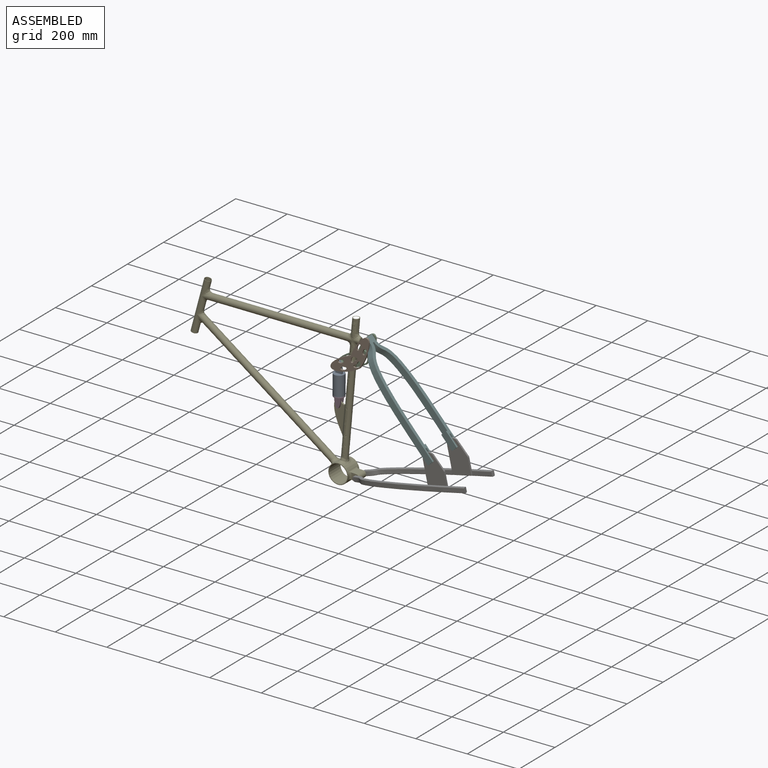
[diagram: assembled view]
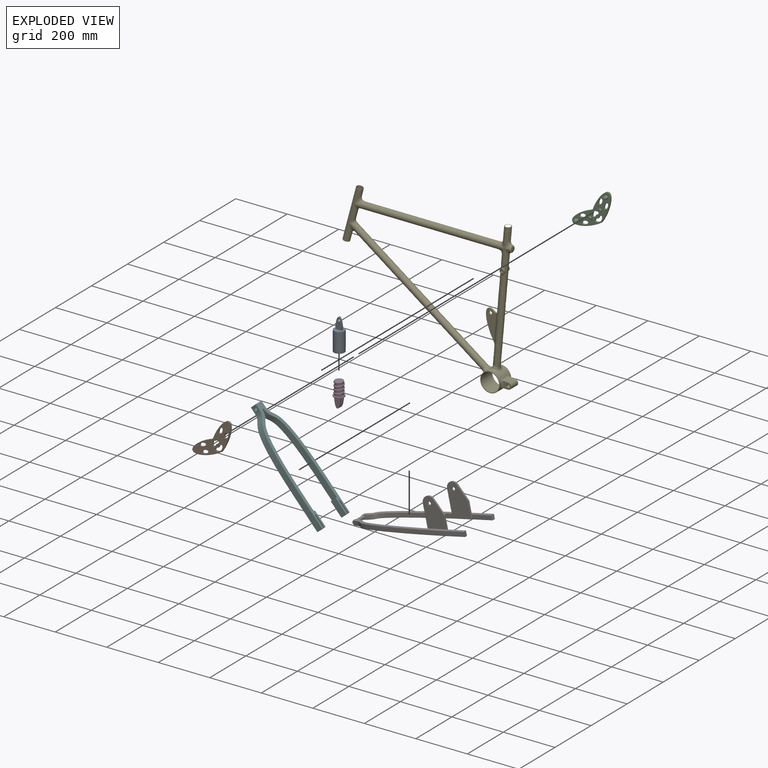
[diagram: exploded view]
GUIDED TOUR — MATED ASSEMBLY (Onshape document c7e5b628f52d0d9c007ad06b, AutoMate assembly c7e5b628f52d0d9c007ad06b_689811bf1573a9c6b45825ce_da18a4ce40c06c7fbb9daafa_default)

This assembly has 7 components, labeled P0..P6 below (a component is one placed occurrence of a part; the same part can appear more than once), held together by 9 mates. A mate is a constraint between two components; its type names the relative motion it leaves free:
  CYLINDRICAL — leaves both rotation about and translation along the listed axis free,
  PLANAR — leaves sliding in the plane through the listed point (normal = the listed direction) and rotation about that normal free,
  REVOLUTE — leaves rotation about the listed axis free (a hinge),
  SLIDER — leaves translation along the listed axis free.
Axis/direction vectors are unit vectors and 'through' points are millimeter coordinates, both in the assembly's world frame.

MATES
  1. PLANAR "Planar 1": P5 <-> P1, direction (0.000, 1.000, 0.000) through (377.31, 0.00, 23.34) mm
  2. SLIDER "Slider 1": P0 <-> P3, axis (-0.004, 0.000, -1.000) through (261.65, 0.00, -196.88) mm
  3. REVOLUTE "Revolute 1": P2 <-> P1, axis (0.000, -1.000, 0.000) through (377.31, 0.00, 23.34) mm
  4. CYLINDRICAL "Cylindrical 1": P0 <-> P2, axis (0.000, -1.000, 0.000) through (262.08, -0.38, -88.15) mm
  5. REVOLUTE "Revolute 5": P6 <-> P4, axis (0.000, 1.000, 0.000) through (341.32, 0.00, -460.16) mm
  6. REVOLUTE "Revolute 3": P2 <-> P4, axis (0.000, -1.000, 0.000) through (314.65, 9.53, -65.71) mm
  7. REVOLUTE "Revolute 4": P3 <-> P4, axis (0.000, -1.000, 0.000) through (261.52, 0.00, -230.20) mm
  8. CYLINDRICAL "Cylindrical 2": P5 <-> P6, axis (0.000, 1.000, 0.000) through (660.91, 66.67, -292.09) mm
  9. REVOLUTE "Revolute 2": P1 <-> P4, axis (0.000, 1.000, 0.000) through (314.65, -9.52, -65.71) mm

ASSEMBLY ORDER
  1. P3 — the base component [order heuristic]
  2. P0 — core [order heuristic]
  3. P5 [order verified]
  4. P6 [order verified]
  5. P4 [order verified]
  6. P2 [order verified]
  7. P1 [order verified]
(P1, P2, P4 verified with a relaxed clearance tolerance: the source model stores slight part interference there.)
Order-tag legend:
  [order verified] — this step's position reverses a verified removal order: the component was checked to insert without passing through the ones already placed.
  [order heuristic] — the first 2 components form the assembly's core: parts whose collision-free extraction could not be verified, listed in mate-graph order.

Of the 7 components, 1 carries the full construction recipe — the FeatureScript program that regenerates the part's solid from scratch; the rest are supplied as boundary geometry only.
Each toured component is shown spotlighted twice — in the assembled view, then in the exploded view, where a leader line traces a displaced component back to its assembled socket (saturated green if recipe-attached, orange if geometry-only; every other component desaturated gray) — followed by its recipe or geometry summary and the mates that hold it.
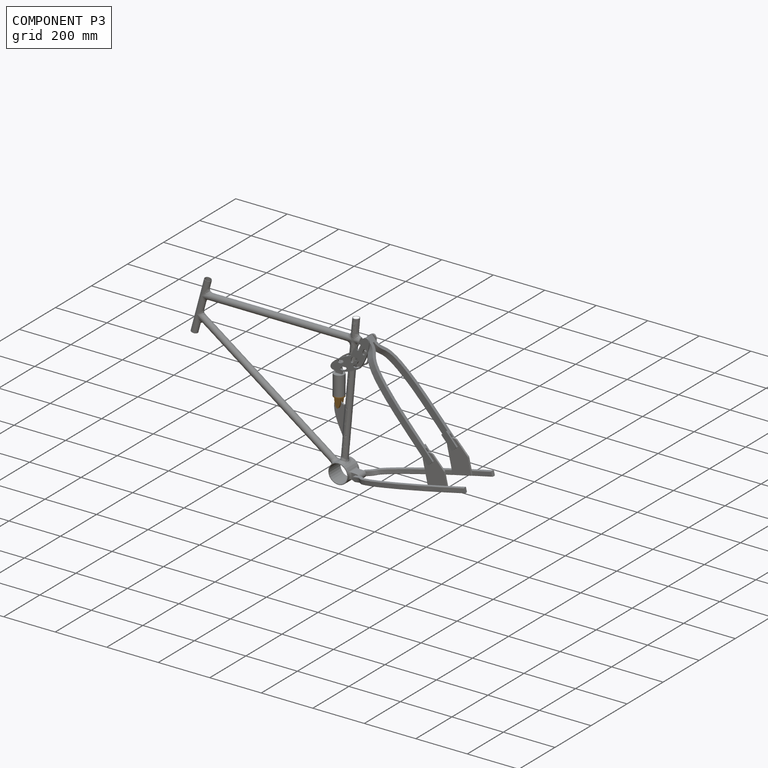
[diagram: component P3 — assembled]
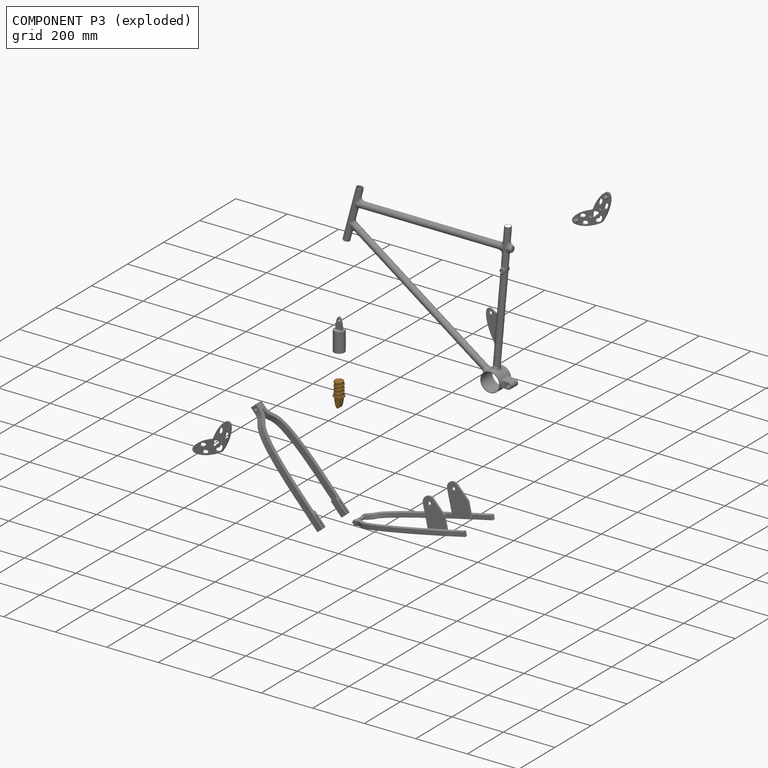
[diagram: component P3 — exploded]
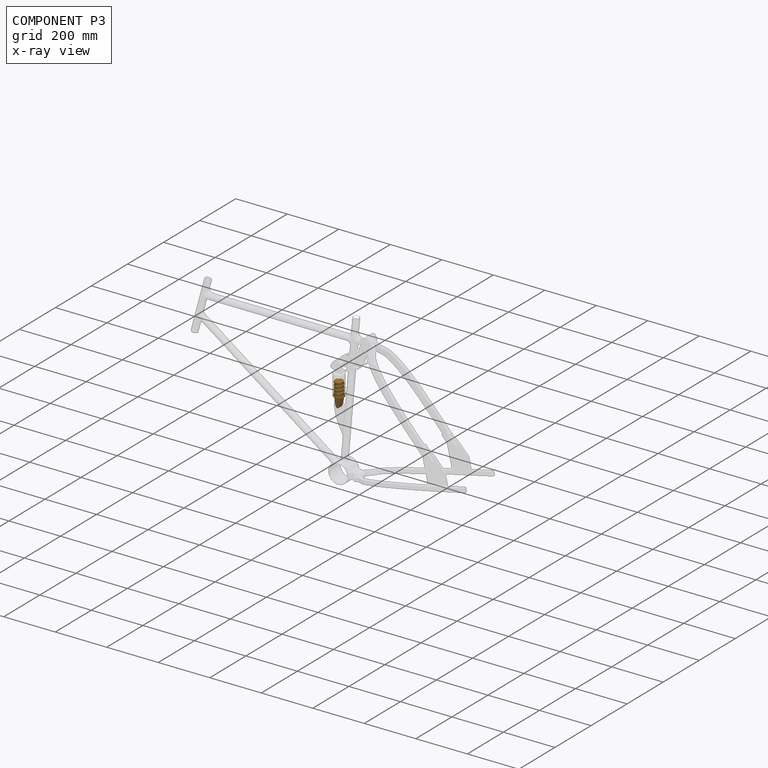
[diagram: component P3 — x-ray view]
COMPONENT P3 — geometry summary (no construction recipe available for this part):
  bounding box: 98.4 x 41.3 x 41.3 mm
  B-rep topology: 1 solid, 23 faces, 112 edges
  volume: 60101 mm^3 (36% of its bounding box)
Held by: SLIDER mate "Slider 1" to P0; REVOLUTE mate "Revolute 4" to P4.
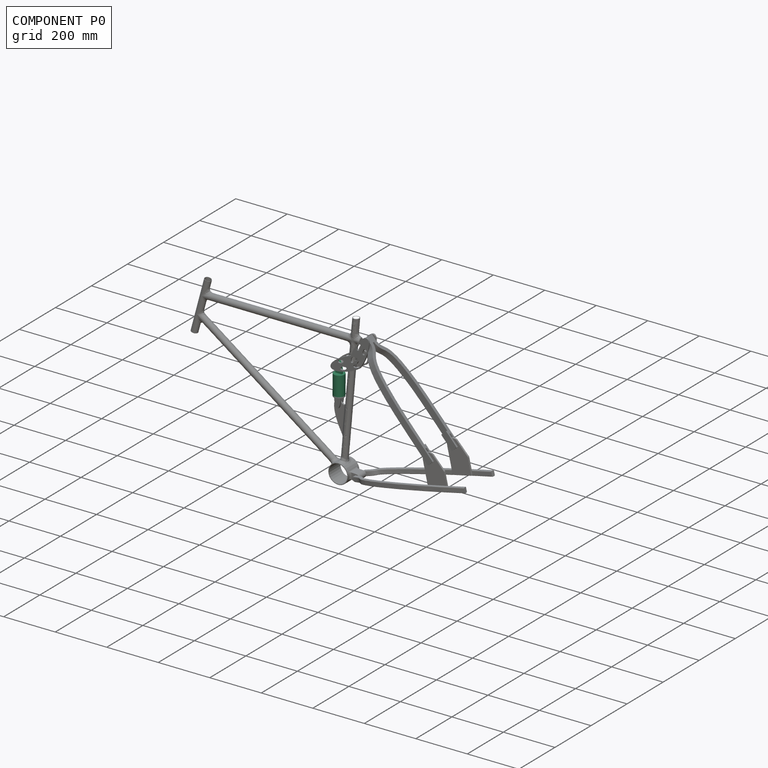
[diagram: component P0 — assembled]
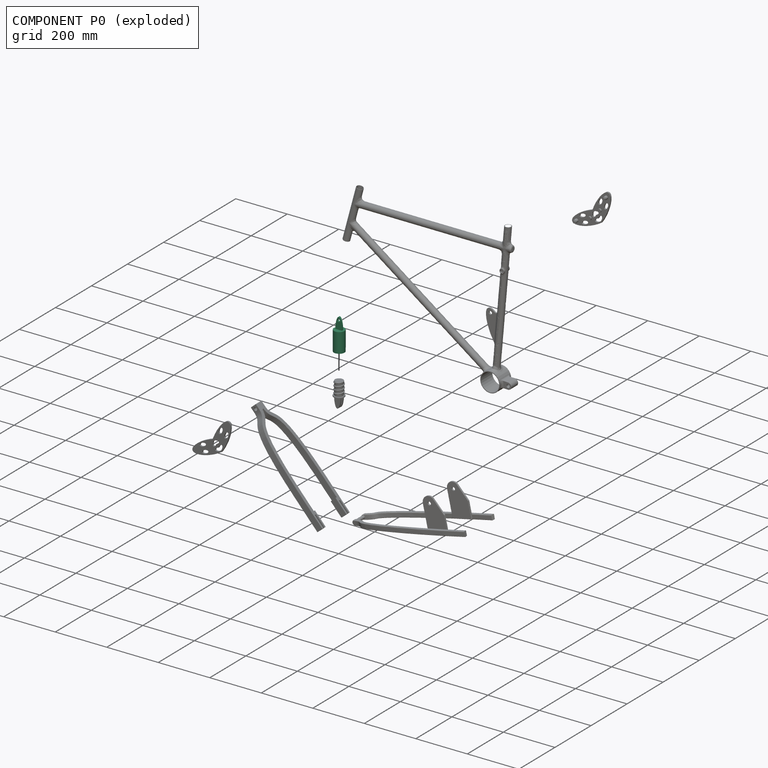
[diagram: component P0 — exploded]
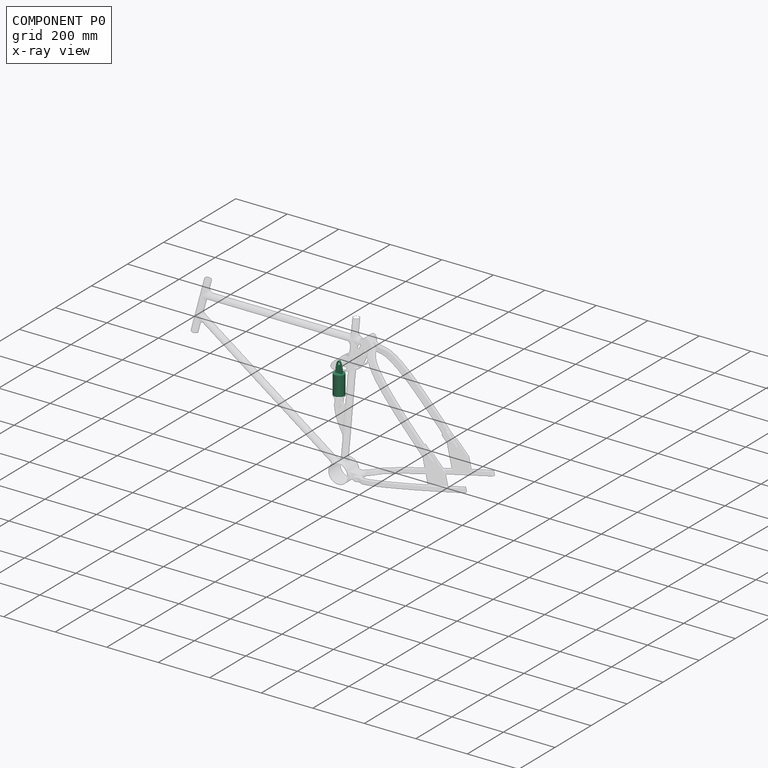
[diagram: component P0 — x-ray view]
COMPONENT P0 — recipe-attached (CADFS 00391191, mesh-verified: the recipe's output STEP matches this component's geometry to below the mesh-comparison resolution (tessellation chordal tolerance ~0.201 mm)).
Held by: SLIDER mate "Slider 1" to P3; CYLINDRICAL mate "Cylindrical 1" to P2.
Construction recipe (FeatureScript — the CAD program that rebuilds this solid; sketch coordinates are in the units given by the * unit suffixes, e.g. mm):

FeatureScript 1837;
import(path : "onshape/std/geometry.fs", version : "1837.0");
import(path : "onshape/std/common.fs", version : "1837.0");
const mm = millimeter;
const VERTEX = EntityType.VERTEX;
const EDGE = EntityType.EDGE;
const FACE = EntityType.FACE;
const BODY = EntityType.BODY;
function v(x, y){return vector(x, y);}
function OD(order){return orderDisambiguation(order);}
function OSD(set){return originalSetDisambiguation(set);}
function TD(topology){return topologyDisambiguation(topology);}
function TDD(query){return trueDependencyDisambiguation(query);}
function sQuery(a, b, c) {return sketchEntityQuery(a, b, c);}

annotation { "Feature Type Name" : "Feature", "Feature Type Description" : "" }
export const myFeature = defineFeature(function(context is Context, id is Id, definition is map)
    precondition{}
    {
        {
            var Q0;
            Q0=qCreatedBy(makeId("Front.planeOp"),FACE);
            var sketch = newSketch(context, id + "F0", { "sketchPlane" : qUnion([Q0])});
            skCircle(sketch, "E0", {"center": v(0, -12.84) * mm, "radius": 4.76 * mm});
            skEllipticalArc(sketch, "E1", {});
            skLineSegment(sketch, "E2", {"start": v(-12.7, 19.69) * mm, "end": v(12.7, 19.69) * mm});
            skLineSegment(sketch, "E3", {"start": v(0, 19.69) * mm, "end": v(0, -25) * mm, "construction": true});
            const initialGuessF0  = {"E1": [1.694662188356233e-09, 0.019685674105118046, 0, -1, 0.044693825766444206, 0.0127, 4.71238898038469, 1.5707963267948966]};
            skSetInitialGuess(sketch, initialGuessF0);
            skSolve(sketch);
        }
        {
            var Q0;
            Q0=sQuery(id+"F0.wireOp",VERTEX,"E1.center");
            var Q1;
            Q1=qCreatedBy(makeId("Top.planeOp"),FACE);
            cPlane(context, id + "F1", {"entities" : qUnion([Q0, Q1]), "cplaneType" : CPlaneType.PLANE_POINT, "offset" : 25.4 * mm, "width" : 152.4 * mm, "height" : 152.4 * mm});
        }
        {
            var Q0;
            Q0=qCreatedBy(id+"F1.planeOp",FACE);
            var sketch = newSketch(context, id + "F2", { "sketchPlane" : qUnion([Q0])});
            skCircle(sketch, "E4", {"center": v(0, 0) * mm, "radius": 20.64 * mm});
            skSolve(sketch);
        }
        {
            var Q0;
            Q0=makeQuery(id+"F2.imprint","IMPRINT",FACE,{"disambiguationData":[TD([[makeQuery(id+"F2.imprint","IMPRINT",EDGE,{"derivedFrom":sQuery(id+"F2.wireOp",EDGE,"E4")}),1.0]])]});
            extrude(context, id + "F3", {"entities" : qUnion([Q0]), "depth" : 76.2 * mm});
        }
        {
            var Q0;
            Q0=makeQuery(id+"F0.imprint","IMPRINT",FACE,{"disambiguationData":[TD([[makeQuery(id+"F0.imprint","IMPRINT",EDGE,{"derivedFrom":sQuery(id+"F0.wireOp",EDGE,"E0")}),-1.0]])]});
            extrude(context, id + "F4", {"entities" : qUnion([Q0]), "operationType" : NewBodyOperationType.ADD, "depth" : 7.11 * mm, "symmetric" : true});
        }
        {
            var Q0;
            Q0=makeQuery(id+"F3.opExtrude","CAP_FACE",FACE,{"disambiguationData":[OSD([sQuery(id+"F2.wireOp",EDGE,"E4")])],"isStart":false});
            shell(context, id + "F5", {"entities" : qUnion([Q0]), "thickness" : 1.59 * mm});
        }
    });
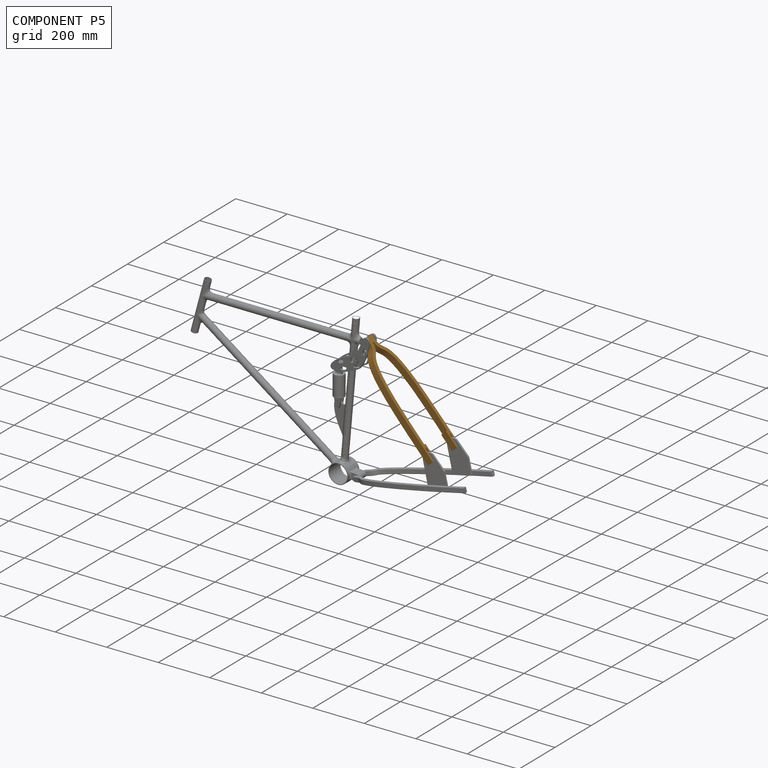
[diagram: component P5 — assembled]
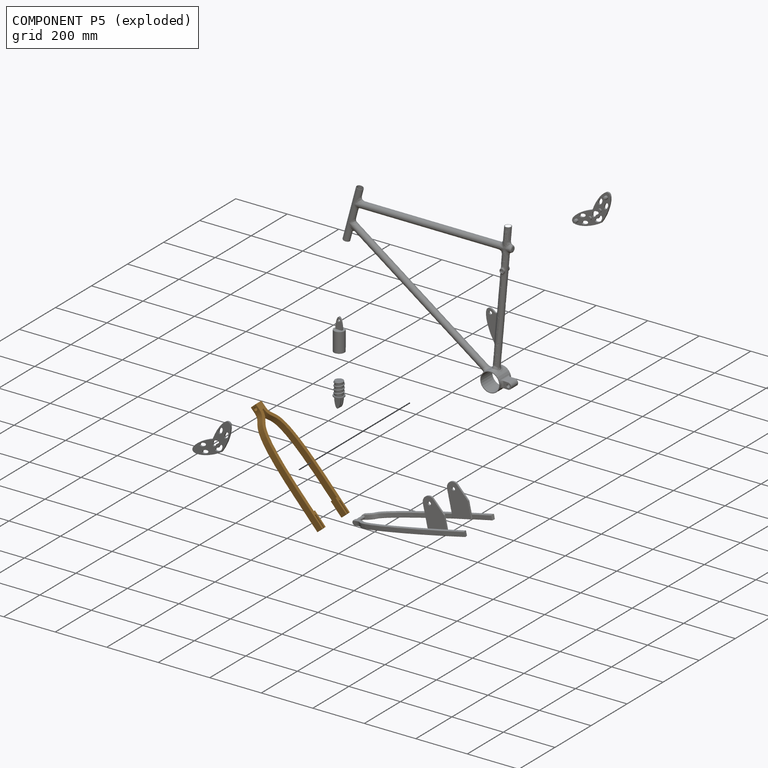
[diagram: component P5 — exploded]
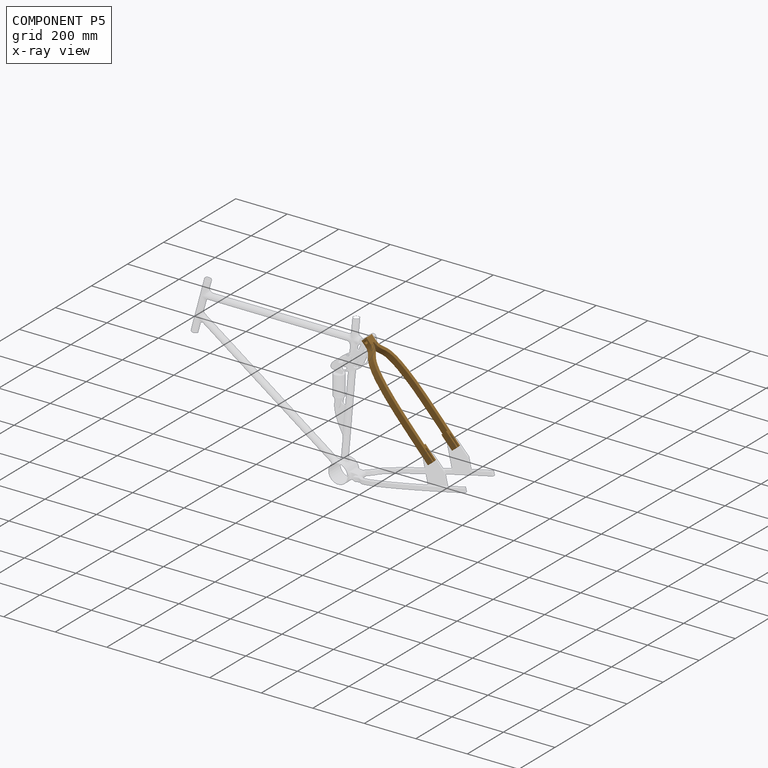
[diagram: component P5 — x-ray view]
COMPONENT P5 — geometry summary (no construction recipe available for this part):
  bounding box: 449.6 x 152.4 x 25.4 mm
  B-rep topology: 1 solid, 31 faces, 186 edges
  volume: 304345 mm^3 (17% of its bounding box)
  symmetry: 2-fold rotationally symmetric about the x axis; mirror-symmetric across its y mid-plane, z mid-plane
Held by: PLANAR mate "Planar 1" to P1; CYLINDRICAL mate "Cylindrical 2" to P6.
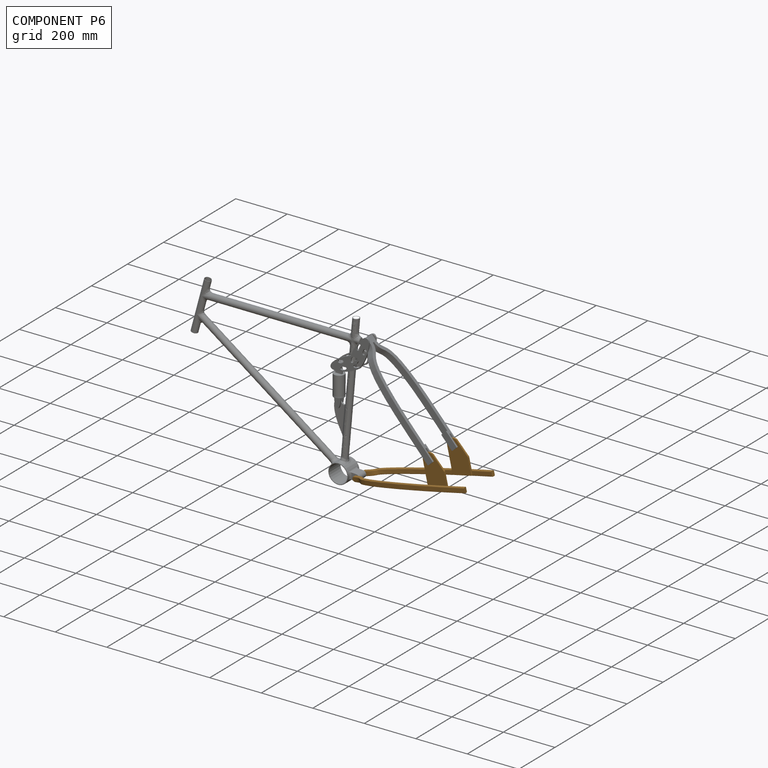
[diagram: component P6 — assembled]
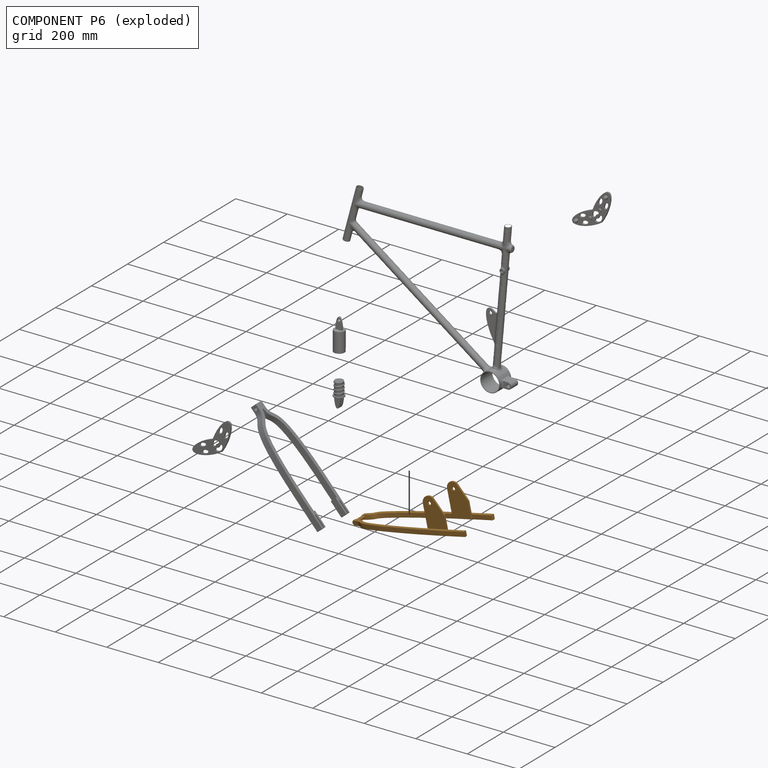
[diagram: component P6 — exploded]
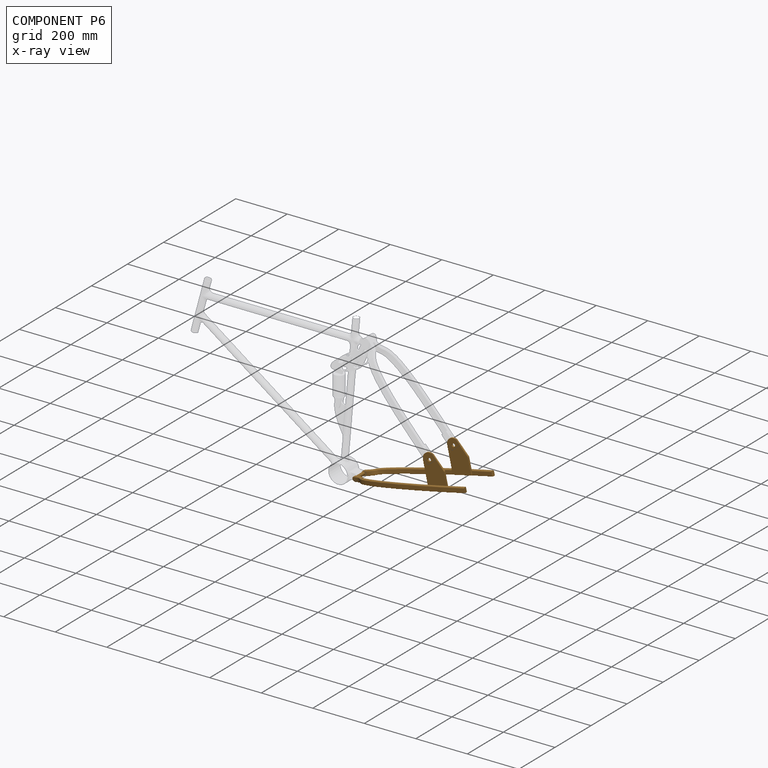
[diagram: component P6 — x-ray view]
COMPONENT P6 — geometry summary (no construction recipe available for this part):
  bounding box: 490.8 x 168.6 x 131.8 mm
  B-rep topology: 1 solid, 66 faces, 321 edges
  volume: 336570 mm^3 (3% of its bounding box)
  symmetry: mirror-symmetric across its y mid-plane
Held by: REVOLUTE mate "Revolute 5" to P4; CYLINDRICAL mate "Cylindrical 2" to P5.
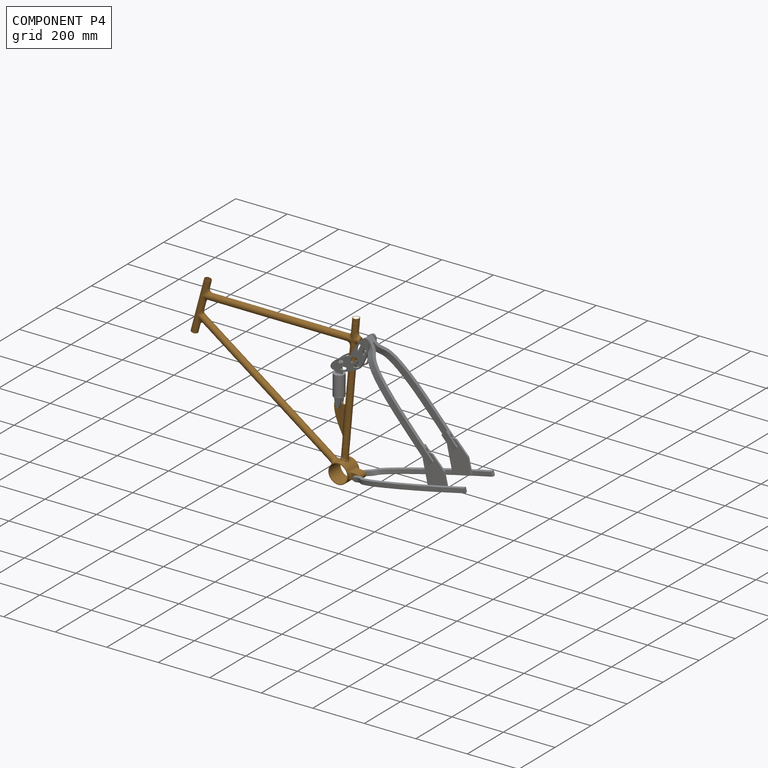
[diagram: component P4 — assembled]
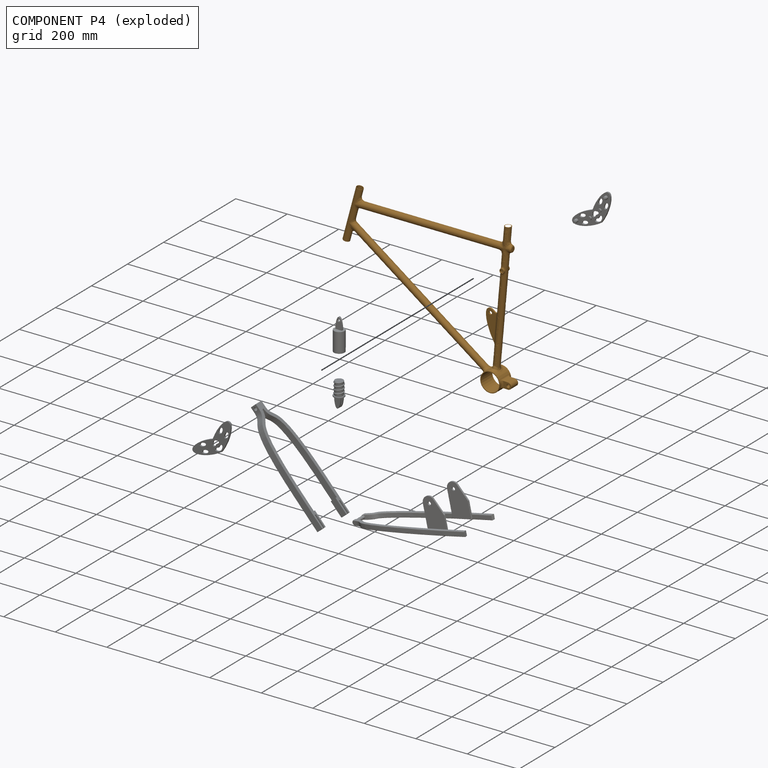
[diagram: component P4 — exploded]
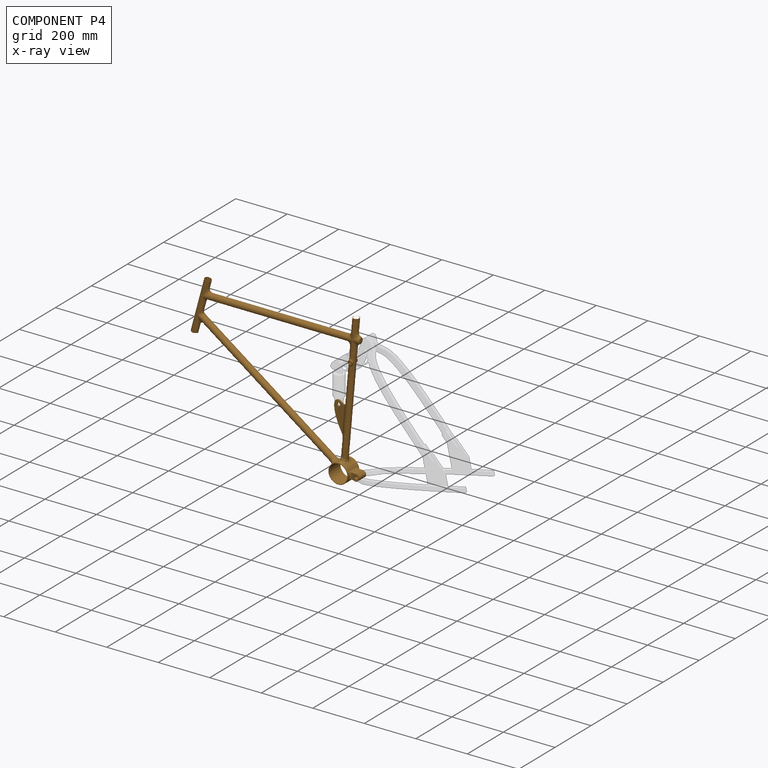
[diagram: component P4 — x-ray view]
COMPONENT P4 — geometry summary (no construction recipe available for this part):
  bounding box: 670.9 x 592.7 x 68.6 mm
  B-rep topology: 1 solid, 108 faces, 497 edges
  volume: 974168 mm^3 (4% of its bounding box)
  symmetry: mirror-symmetric across its y mid-plane
Held by: REVOLUTE mate "Revolute 5" to P6; REVOLUTE mate "Revolute 3" to P2; REVOLUTE mate "Revolute 4" to P3; REVOLUTE mate "Revolute 2" to P1.
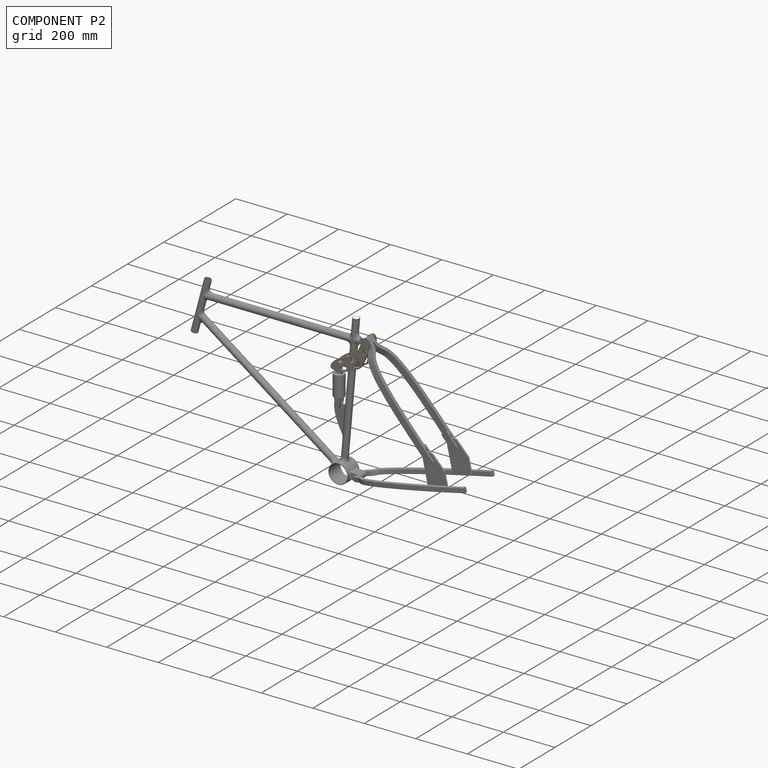
[diagram: component P2 — assembled]
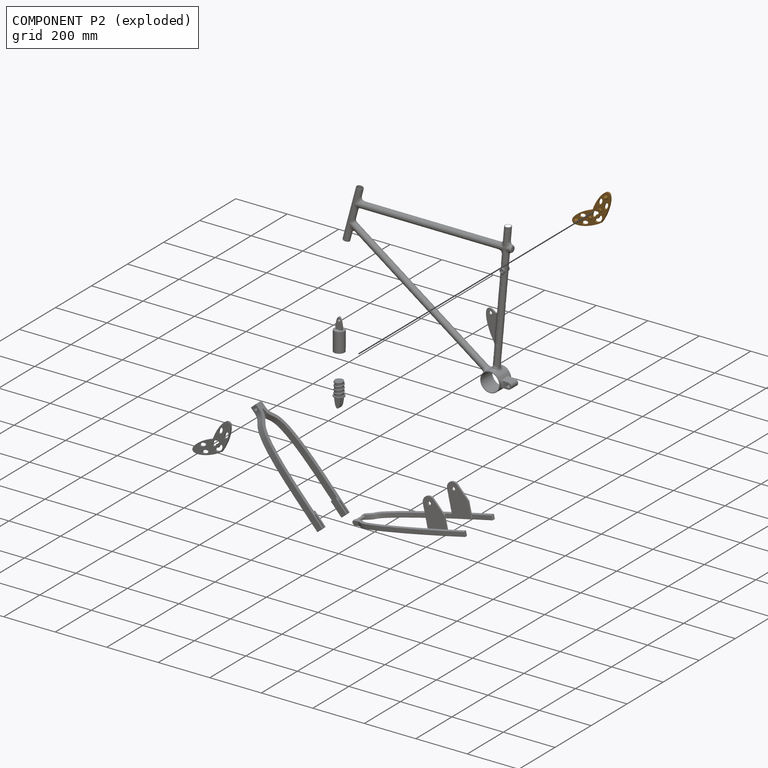
[diagram: component P2 — exploded]
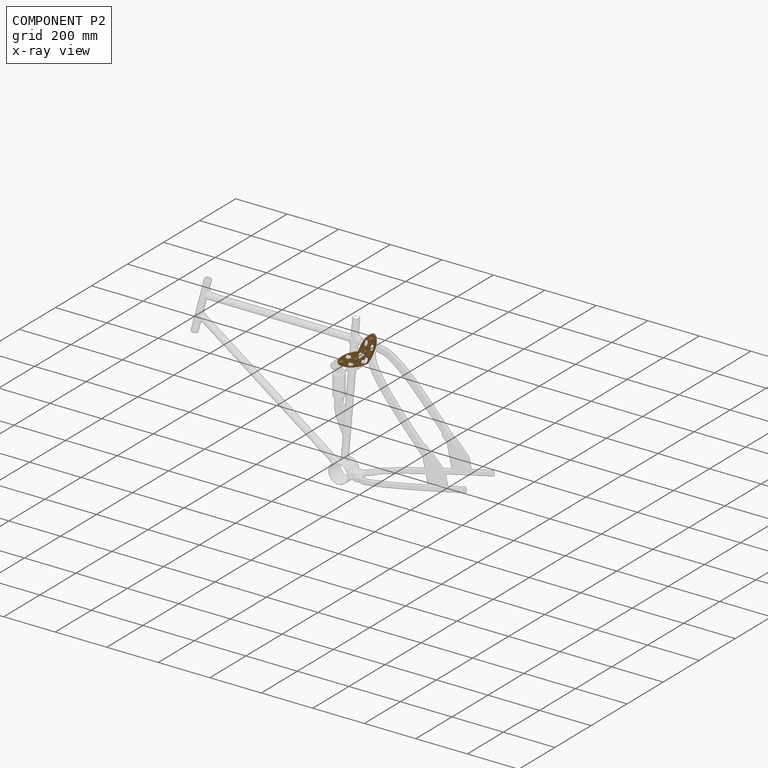
[diagram: component P2 — x-ray view]
COMPONENT P2 — geometry summary (no construction recipe available for this part):
  bounding box: 185.5 x 98.8 x 22.2 mm
  B-rep topology: 1 solid, 26 faces, 108 edges
  volume: 50637 mm^3 (12% of its bounding box)
Held by: REVOLUTE mate "Revolute 1" to P1; CYLINDRICAL mate "Cylindrical 1" to P0; REVOLUTE mate "Revolute 3" to P4.
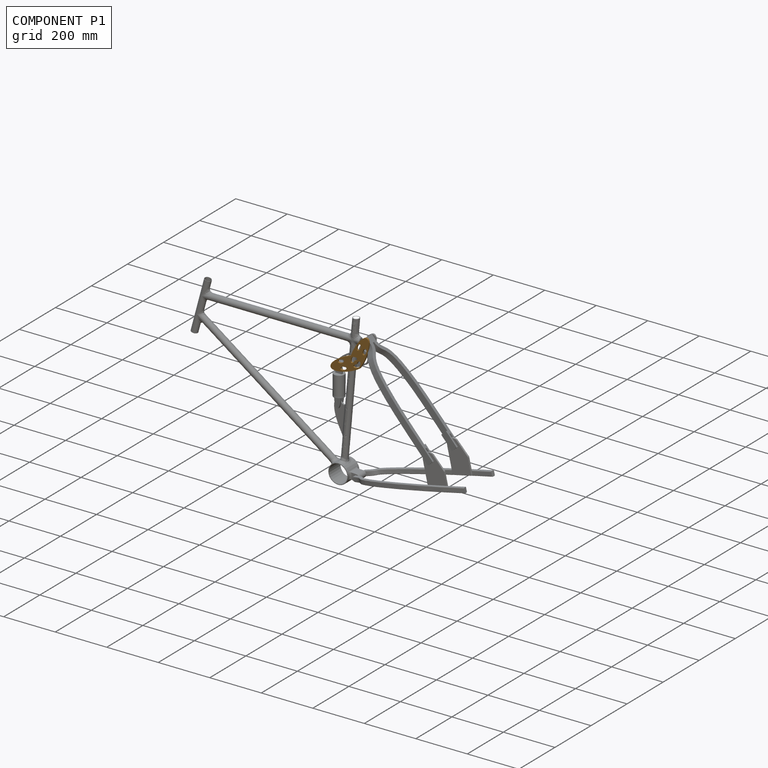
[diagram: component P1 — assembled]
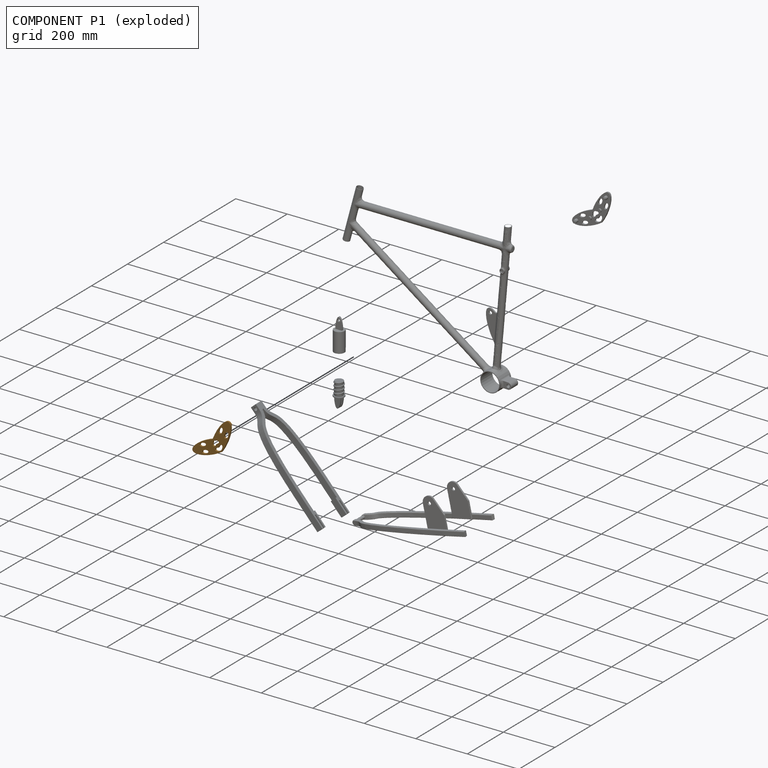
[diagram: component P1 — exploded]
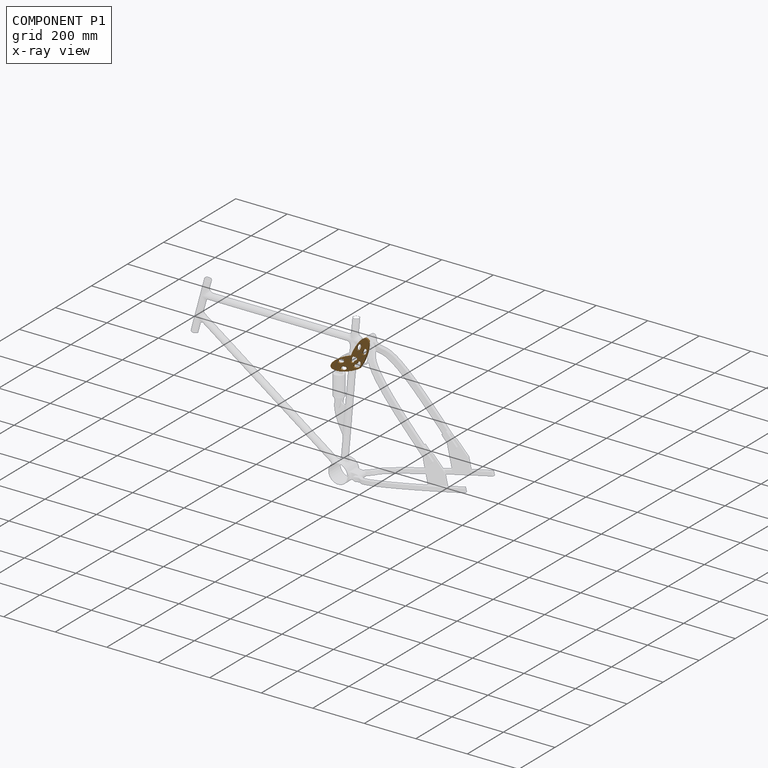
[diagram: component P1 — x-ray view]
COMPONENT P1 — geometry summary (no construction recipe available for this part):
  bounding box: 185.5 x 98.8 x 22.2 mm
  B-rep topology: 1 solid, 26 faces, 108 edges
  volume: 50637 mm^3 (12% of its bounding box)
Held by: PLANAR mate "Planar 1" to P5; REVOLUTE mate "Revolute 1" to P2; REVOLUTE mate "Revolute 2" to P4.
PROVENANCE & LICENSES
Assembly (occurrences, transforms, mates, per-part STEP geometry): AutoMate dataset, Zenodo record 7776208, CC0.
Construction recipes: CADFS (HuggingFace VladPyatov/CADFS, CC-BY-4.0, layered over the ABC dataset), FeatureScript reconstruction programs keyed by ABC model id.
Join: ABC meta listings map ABC model id -> Onshape documentId; within a shared document, parts are matched by geometric signature (bounding-box dims + volume at 0.1% relative tolerance, exact B-rep face/solid counts).
Verification: 1 of this assembly's 7 components carries a recipe attachment, and every attachment is mesh-verified: the CADFS STEP and the AutoMate member STEP were compared as meshes in their shared local frame (symmetric sampled-point-to-mesh distance); worst across the 1 attachment: below the mesh-comparison resolution (tessellation chordal tolerance ~0.201 mm) on a 134 mm part.
Renders: orthographic iso camera (az 35 / el 25); the floor grid conveys scale (grid pitch printed in each image; no ruler). In the exploded view each component is displaced by its stored offset vector: the offsets alone carry the explosion direction (mate normal/axis signs are not orientation cues and do not encode it), and separation distances are assigned per mate-chain, not proportionally to assembly-order depth.
